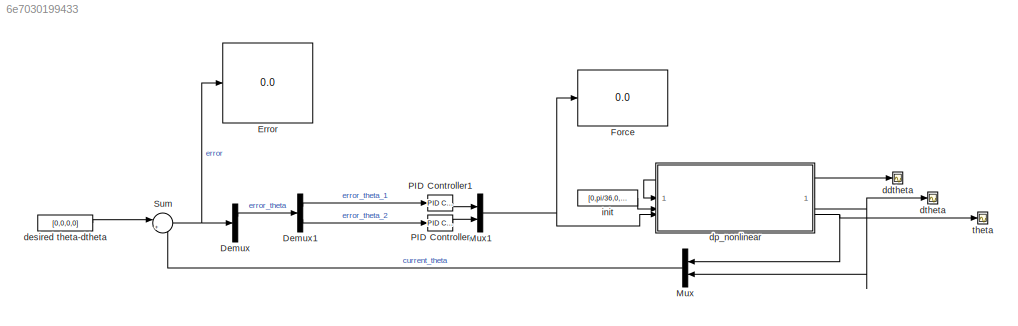
MODEL slx_6e7030199433
KIND model
CONFIG AbsTol = auto
CONFIG EnableMultiTasking = off
CONFIG FixedStep = auto
CONFIG MaxStep = auto
CONFIG MinStep = auto
CONFIG RelTol = 1e-3
CONFIG SampleTimeConstraint = Unconstrained
CONFIG SolverName = VariableStepAuto
CONFIG StartTime = 0.0
CONFIG StopTime = 20
BLOCK [Demux] Demux
  Outputs = 2
BLOCK [Demux] Demux1
  Outputs = 2
BLOCK [Display] Error
  Decimation = 1
BLOCK [Display] Force
  Decimation = 1
BLOCK [Mux] Mux
  DisplayOption = bar
  Inputs = 2
BLOCK [Mux] Mux1
  DisplayOption = bar
  Inputs = 2
BLOCK [Reference] PID Controller  REF=slpidlib/PID Controller
  LibrarySourceBlock = simulink/Continuous/PID Controller
  SourceBlock = slpidlib/PID Controller
  SourceType = PID 1dof
BLOCK [Reference] PID Controller1  REF=slpidlib/PID Controller
  LibrarySourceBlock = simulink/Continuous/PID Controller
  SourceBlock = slpidlib/PID Controller
  SourceType = PID 1dof
BLOCK [Sum] Sum
  Inputs = |+-
BLOCK [Scope] ddtheta
  Floating = off
  NumInputPorts = 1
  ScopeSpecificationString = Simulink.scopes.TimeScopeBlockCfg('CurrentConfiguration', extmgr.ConfigurationSet(extmgr.Configuration('Core','General UI',true),extmgr.Configuration('Core','Source UI',true),extmgr.Configuration('Sources','WiredSimulink',true,'DataLoggingVariableName','ScopeData3'),extmgr.Configuration('Visuals','Time Domain',true,'SerializedDisplays',{struct('MinYLimReal','-29.03936','MaxYLimReal','29.00658','YL...<+1433ch>
BLOCK [Constant] desired theta-dtheta
  Value = [0,0,0,0]
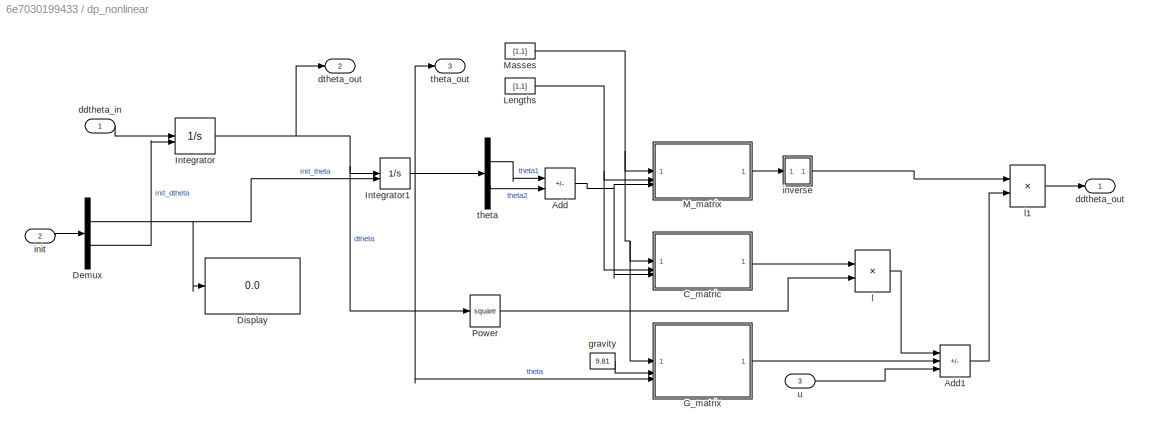
BLOCK [SubSystem] dp_nonlinear
BLOCK [Sum] dp_nonlinear/Add
  IconShape = rectangular
  Inputs = +-
BLOCK [Sum] dp_nonlinear/Add1
  IconShape = rectangular
  Inputs = --+
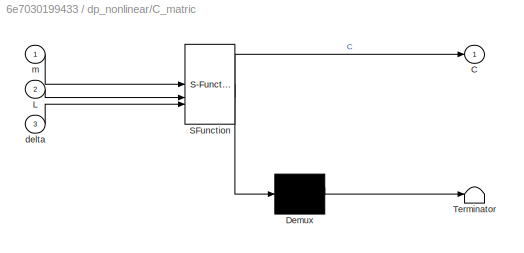
BLOCK [SubSystem] dp_nonlinear/C_matric
  ErrorFcn = Stateflow.Translate.translate
  LibrarySourceBlock = simulink/User-Defined\nFunctions/MATLAB Function
  PermitHierarchicalResolution = ExplicitOnly
  SFBlockType = MATLAB Function
  TreatAsAtomicUnit = on
BLOCK [Demux] dp_nonlinear/C_matric/ Demux 
  Outputs = 1
BLOCK [S-Function] dp_nonlinear/C_matric/ SFunction 
  EnableBusSupport = on
  FunctionName = sf_sfun
  PortCounts = [3 2]
  SFcnIsStateOwnerBlock = off
  SFunctionDeploymentMode = off
  Tag = Stateflow S-Function 5
BLOCK [Terminator] dp_nonlinear/C_matric/ Terminator 
BLOCK [Outport] dp_nonlinear/C_matric/C
BLOCK [Inport] dp_nonlinear/C_matric/L
  Port = 2
BLOCK [Inport] dp_nonlinear/C_matric/delta
  Port = 3
BLOCK [Inport] dp_nonlinear/C_matric/m
BLOCK [Demux] dp_nonlinear/Demux
  Outputs = [2 2]
BLOCK [Display] dp_nonlinear/Display
  Decimation = 1
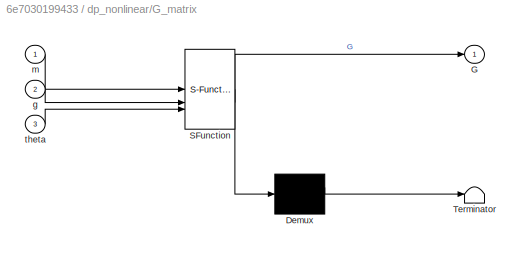
BLOCK [SubSystem] dp_nonlinear/G_matrix
  ErrorFcn = Stateflow.Translate.translate
  LibrarySourceBlock = simulink/User-Defined\nFunctions/MATLAB Function
  PermitHierarchicalResolution = ExplicitOnly
  SFBlockType = MATLAB Function
  TreatAsAtomicUnit = on
BLOCK [Demux] dp_nonlinear/G_matrix/ Demux 
  Outputs = 1
BLOCK [S-Function] dp_nonlinear/G_matrix/ SFunction 
  EnableBusSupport = on
  FunctionName = sf_sfun
  PortCounts = [3 2]
  SFcnIsStateOwnerBlock = off
  SFunctionDeploymentMode = off
  Tag = Stateflow S-Function 6
BLOCK [Terminator] dp_nonlinear/G_matrix/ Terminator 
BLOCK [Outport] dp_nonlinear/G_matrix/G
BLOCK [Inport] dp_nonlinear/G_matrix/g
  Port = 2
BLOCK [Inport] dp_nonlinear/G_matrix/m
BLOCK [Inport] dp_nonlinear/G_matrix/theta
  Port = 3
BLOCK [Integrator] dp_nonlinear/Integrator
  InitialConditionSource = external
BLOCK [Integrator] dp_nonlinear/Integrator1
  InitialConditionSource = external
BLOCK [Constant] dp_nonlinear/Lengths
  Value = [1,1]
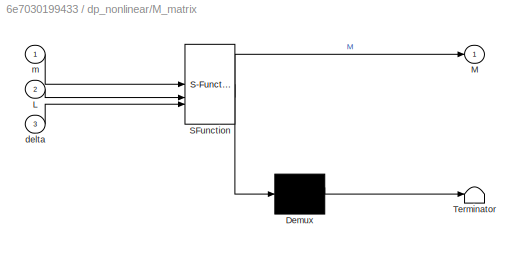
BLOCK [SubSystem] dp_nonlinear/M_matrix
  ErrorFcn = Stateflow.Translate.translate
  LibrarySourceBlock = simulink/User-Defined\nFunctions/MATLAB Function
  PermitHierarchicalResolution = ExplicitOnly
  SFBlockType = MATLAB Function
  TreatAsAtomicUnit = on
BLOCK [Demux] dp_nonlinear/M_matrix/ Demux 
  Outputs = 1
BLOCK [S-Function] dp_nonlinear/M_matrix/ SFunction 
  EnableBusSupport = on
  FunctionName = sf_sfun
  PortCounts = [3 2]
  SFcnIsStateOwnerBlock = off
  SFunctionDeploymentMode = off
  Tag = Stateflow S-Function 7
BLOCK [Terminator] dp_nonlinear/M_matrix/ Terminator 
BLOCK [Inport] dp_nonlinear/M_matrix/L
  Port = 2
BLOCK [Outport] dp_nonlinear/M_matrix/M
BLOCK [Inport] dp_nonlinear/M_matrix/delta
  Port = 3
BLOCK [Inport] dp_nonlinear/M_matrix/m
BLOCK [Constant] dp_nonlinear/Masses
  Value = [1,1]
BLOCK [Math] dp_nonlinear/Power
  Operator = square
BLOCK [Inport] dp_nonlinear/ddtheta_in
  PortDimensions = 2
BLOCK [Outport] dp_nonlinear/ddtheta_out
BLOCK [Outport] dp_nonlinear/dtheta_out
  Port = 2
BLOCK [Constant] dp_nonlinear/gravity
  Value = 9.81
BLOCK [Inport] dp_nonlinear/init
  Port = 2
  PortDimensions = 4
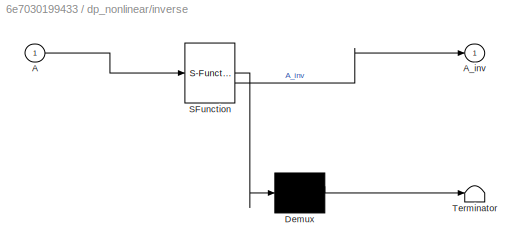
BLOCK [SubSystem] dp_nonlinear/inverse
  ErrorFcn = Stateflow.Translate.translate
  LibrarySourceBlock = simulink/User-Defined\nFunctions/MATLAB Function
  PermitHierarchicalResolution = ExplicitOnly
  SFBlockType = MATLAB Function
  TreatAsAtomicUnit = on
BLOCK [Demux] dp_nonlinear/inverse/ Demux 
  Outputs = 1
BLOCK [S-Function] dp_nonlinear/inverse/ SFunction 
  EnableBusSupport = on
  FunctionName = sf_sfun
  PortCounts = [1 2]
  SFcnIsStateOwnerBlock = off
  SFunctionDeploymentMode = off
  Tag = Stateflow S-Function 8
BLOCK [Terminator] dp_nonlinear/inverse/ Terminator 
BLOCK [Inport] dp_nonlinear/inverse/A
BLOCK [Outport] dp_nonlinear/inverse/A_inv
BLOCK [Product] dp_nonlinear/l
  Multiplication = Matrix(*)
BLOCK [Product] dp_nonlinear/l1
  Multiplication = Matrix(*)
BLOCK [Demux] dp_nonlinear/theta
  Outputs = 2
BLOCK [Outport] dp_nonlinear/theta_out
  Port = 3
BLOCK [Inport] dp_nonlinear/u
  Port = 3
  PortDimensions = 2
BLOCK [Scope] dtheta
  Floating = off
  NumInputPorts = 1
  ScopeSpecificationString = Simulink.scopes.TimeScopeBlockCfg('CurrentConfiguration', extmgr.ConfigurationSet(extmgr.Configuration('Core','General UI',true),extmgr.Configuration('Core','Source UI',true),extmgr.Configuration('Sources','WiredSimulink',true),extmgr.Configuration('Visuals','Time Domain',true,'SerializedDisplays',{struct('MinYLimReal','-0.71846','MaxYLimReal','0.46121','YLabelReal','','MinYLimMag','0.00000','MaxY...<+1395ch>
BLOCK [Constant] init
  Value = [0,pi/36,0,0]
BLOCK [Scope] theta
  Floating = off
  NumInputPorts = 1
  ScopeSpecificationString = Simulink.scopes.TimeScopeBlockCfg('CurrentConfiguration', extmgr.ConfigurationSet(extmgr.Configuration('Core','General UI',true),extmgr.Configuration('Core','Source UI',true),extmgr.Configuration('Sources','WiredSimulink',true,'DataLoggingVariableName','ScopeData1'),extmgr.Configuration('Visuals','Time Domain',true,'SerializedDisplays',{struct('MinYLimReal','-0.0662','MaxYLimReal','0.10432','YLabe...<+1446ch>
LINE Demux1:1 -> PID Controller1:1
LINE Demux1:2 -> PID Controller:1
LINE Demux:1 -> Demux1:1
NET Mux1:1 -> Force:1, dp_nonlinear:3
LINE Mux:1 -> Sum:2
LINE PID Controller1:1 -> Mux1:1
LINE PID Controller:1 -> Mux1:2
NET Sum:1 -> Demux:1, Error:1
LINE desired theta-dtheta:1 -> Sum:1
LINE dp_nonlinear/Add1:1 -> dp_nonlinear/l1:2
NET dp_nonlinear/Add:1 -> dp_nonlinear/C_matric:3, dp_nonlinear/M_matrix:3
LINE dp_nonlinear/C_matric:1 -> dp_nonlinear/l:1
NET dp_nonlinear/Demux:1 -> dp_nonlinear/Display:1, dp_nonlinear/Integrator1:2
LINE dp_nonlinear/Demux:2 -> dp_nonlinear/Integrator:2
LINE dp_nonlinear/G_matrix:1 -> dp_nonlinear/Add1:2
NET dp_nonlinear/Integrator1:1 -> dp_nonlinear/G_matrix:3, dp_nonlinear/theta:1, dp_nonlinear/theta_out:1
NET dp_nonlinear/Integrator:1 -> dp_nonlinear/Integrator1:1, dp_nonlinear/Power:1, dp_nonlinear/dtheta_out:1
NET dp_nonlinear/Lengths:1 -> dp_nonlinear/C_matric:2, dp_nonlinear/M_matrix:2
LINE dp_nonlinear/M_matrix:1 -> dp_nonlinear/inverse:1
NET dp_nonlinear/Masses:1 -> dp_nonlinear/C_matric:1, dp_nonlinear/G_matrix:1, dp_nonlinear/M_matrix:1
LINE dp_nonlinear/Power:1 -> dp_nonlinear/l:2
LINE dp_nonlinear/ddtheta_in:1 -> dp_nonlinear/Integrator:1
LINE dp_nonlinear/gravity:1 -> dp_nonlinear/G_matrix:2
LINE dp_nonlinear/init:1 -> dp_nonlinear/Demux:1
LINE dp_nonlinear/inverse:1 -> dp_nonlinear/l1:1
LINE dp_nonlinear/l1:1 -> dp_nonlinear/ddtheta_out:1
LINE dp_nonlinear/l:1 -> dp_nonlinear/Add1:1
LINE dp_nonlinear/theta:1 -> dp_nonlinear/Add:1
LINE dp_nonlinear/theta:2 -> dp_nonlinear/Add:2
LINE dp_nonlinear/u:1 -> dp_nonlinear/Add1:3
NET dp_nonlinear:1 -> ddtheta:1, dp_nonlinear:1
NET dp_nonlinear:2 -> Mux:2, dtheta:1
NET dp_nonlinear:3 -> Mux:1, theta:1
LINE init:1 -> dp_nonlinear:2
note: NET lines group one-source signal fan-out (src -> all destinations, sorted); 1:1 wires keep LINE
CHART dp_nonlinear/C_matric states=1 transitions=1
  STATE_LABEL 'eML_blk_kernel()'
  STATE_LABEL 'SCRIPT:\nfunction C = C_matrix(m,L,delta)\nm2 = m(2);\nm1 = m(1);\nl1 = L(1);\nl2 = L(2);\n\nC = [0, m2*l2*sin(delta); l1*sin(delta)  , 0];  % Coupling matrix\nend\n'
CHART dp_nonlinear/G_matrix states=1 transitions=1
  STATE_LABEL 'eML_blk_kernel()'
  STATE_LABEL 'SCRIPT:\nfunction G = G_matrix(m,g,theta)\nm2 = m(2);\nm1 = m(1);\ng = g;\ntheta_1 = theta(1);\ntheta_2 = theta(2);\nG = [(m1+m2)*g*sin(theta_1); g*sin(theta_2)];                 % Gravitational matrix\nend\n'
CHART dp_nonlinear/M_matrix states=1 transitions=1
  STATE_LABEL 'eML_blk_kernel()'
  STATE_LABEL 'SCRIPT:\nfunction M  = M_matrix(m,L,delta)\nm2 = m(2);\nm1 = m(1);\nl1 = L(1);\nl2 = L(2);\nM = [(m1+m2)*l1  , m2*l2*cos(delta); l1*cos(delta)  , l2]; % Mass matrix\nend\n'
CHART dp_nonlinear/inverse states=1 transitions=1
  STATE_LABEL 'eML_blk_kernel()'
  STATE_LABEL 'SCRIPT:\nfunction A_inv = fcn(A)\n    A_inv = inv(A);\nend'
CHART  states=0 transitions=0
CHART  states=0 transitions=0
CHART  states=0 transitions=0
CHART  states=0 transitions=0
